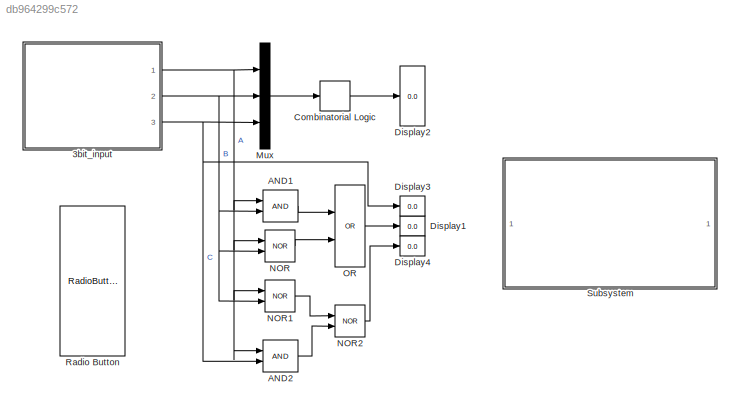
MODEL slx_db964299c572
KIND model
CONFIG AbsTol = auto
CONFIG EnableMultiTasking = off
CONFIG FixedStep = 1
CONFIG MaxStep = 1
CONFIG MinStep = auto
CONFIG RelTol = 1e-3
CONFIG SampleTimeConstraint = Unconstrained
CONFIG Solver = FixedStepAuto
CONFIG SolverName = FixedStepAuto
CONFIG StartTime = 0.0
CONFIG StopTime = inf
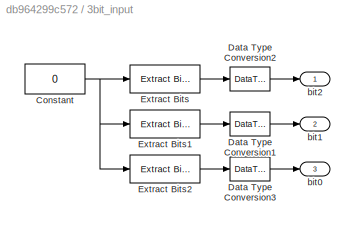
BLOCK [SubSystem] 3bit_input
  Ports = [0, 3]
  RequestExecContextInheritance = off
BLOCK [Constant] 3bit_input/Constant
  OutDataTypeStr = uint8
  OutMax = 7
  OutMin = 0
  Value = 0
BLOCK [DataTypeConversion] 3bit_input/Data Type Conversion1
  OutDataTypeStr = boolean
  RndMeth = Floor
  SaturateOnIntegerOverflow = off
BLOCK [DataTypeConversion] 3bit_input/Data Type Conversion2
  OutDataTypeStr = boolean
  RndMeth = Floor
  SaturateOnIntegerOverflow = off
BLOCK [DataTypeConversion] 3bit_input/Data Type Conversion3
  OutDataTypeStr = boolean
  RndMeth = Floor
  SaturateOnIntegerOverflow = off
BLOCK [Reference] 3bit_input/Extract Bits  REF=simulink/Logic and Bit
Operations/Extract Bits
  Ports = [1, 1]
  SourceBlock = simulink/Logic and Bit\nOperations/Extract Bits
  SourceProductBaseCode = SL
  SourceProductName = Simulink
  SourceType = Extract Bits
BLOCK [Reference] 3bit_input/Extract Bits1  REF=simulink/Logic and Bit
Operations/Extract Bits
  Ports = [1, 1]
  SourceBlock = simulink/Logic and Bit\nOperations/Extract Bits
  SourceProductBaseCode = SL
  SourceProductName = Simulink
  SourceType = Extract Bits
BLOCK [Reference] 3bit_input/Extract Bits2  REF=simulink/Logic and Bit
Operations/Extract Bits
  Ports = [1, 1]
  SourceBlock = simulink/Logic and Bit\nOperations/Extract Bits
  SourceProductBaseCode = SL
  SourceProductName = Simulink
  SourceType = Extract Bits
BLOCK [Outport] 3bit_input/bit0
  IconDisplay = Port number
  Port = 3
BLOCK [Outport] 3bit_input/bit1
  IconDisplay = Port number
  Port = 2
BLOCK [Outport] 3bit_input/bit2
  IconDisplay = Port number
BLOCK [Logic] AND1
  AllPortsSameDT = off
  IconShape = distinctive
  OutDataTypeStr = boolean
  Ports = [2, 1]
BLOCK [Logic] AND2
  AllPortsSameDT = off
  IconShape = distinctive
  OutDataTypeStr = boolean
  Ports = [2, 1]
BLOCK [CombinatorialLogic] Combinatorial Logic
  TruthTable = [0 1 0 ; 1 1 0 ; 0 0 1 ; 1 0 1 ; 0 0 1 ; 1 0 0 ; 0 1 1 ; 1 1 0]
BLOCK [Display] Display1
  Decimation = 1
  Ports = [1]
BLOCK [Display] Display2
  Decimation = 1
  Ports = [1]
BLOCK [Display] Display3
  Decimation = 1
  Ports = [1]
BLOCK [Display] Display4
  Decimation = 1
  Ports = [1]
BLOCK [Mux] Mux
  DisplayOption = bar
  Inputs = 3
  Ports = [3, 1]
BLOCK [Logic] NOR
  AllPortsSameDT = off
  IconShape = distinctive
  Operator = NOR
  OutDataTypeStr = boolean
  Ports = [2, 1]
BLOCK [Logic] NOR1
  AllPortsSameDT = off
  IconShape = distinctive
  Operator = NOR
  OutDataTypeStr = boolean
  Ports = [2, 1]
BLOCK [Logic] NOR2
  AllPortsSameDT = off
  IconShape = distinctive
  Operator = NOR
  OutDataTypeStr = boolean
  Ports = [2, 1]
BLOCK [Logic] OR
  AllPortsSameDT = off
  IconShape = distinctive
  Operator = OR
  OutDataTypeStr = boolean
  Ports = [2, 1]
BLOCK [RadioButtonGroup] Radio Button
  SelectedLabel = 0
BLOCK [SubSystem] Subsystem
  Ports = []
  RequestExecContextInheritance = off
NET 3bit_input/Constant:1 -> 3bit_input/Extract Bits1:1, 3bit_input/Extract Bits2:1, 3bit_input/Extract Bits:1
LINE 3bit_input/Data Type Conversion1:1 -> 3bit_input/bit1:1
LINE 3bit_input/Data Type Conversion2:1 -> 3bit_input/bit2:1
LINE 3bit_input/Data Type Conversion3:1 -> 3bit_input/bit0:1
LINE 3bit_input/Extract Bits1:1 -> 3bit_input/Data Type Conversion1:1
LINE 3bit_input/Extract Bits2:1 -> 3bit_input/Data Type Conversion3:1
LINE 3bit_input/Extract Bits:1 -> 3bit_input/Data Type Conversion2:1
NET 3bit_input:1 -> AND1:1, AND2:1, Mux:1, NOR1:1, NOR:1
NET 3bit_input:2 -> AND1:2, Mux:2, NOR1:2, NOR:2
NET 3bit_input:3 -> AND2:2, Display3:1, Mux:3
LINE AND1:1 -> OR:1
LINE AND2:1 -> NOR2:2
LINE Combinatorial Logic:1 -> Display2:1
LINE Mux:1 -> Combinatorial Logic:1
LINE NOR1:1 -> NOR2:1
LINE NOR2:1 -> Display4:1
LINE NOR:1 -> OR:2
LINE OR:1 -> Display1:1
note: NET lines group one-source signal fan-out (src -> all destinations, sorted); 1:1 wires keep LINE
